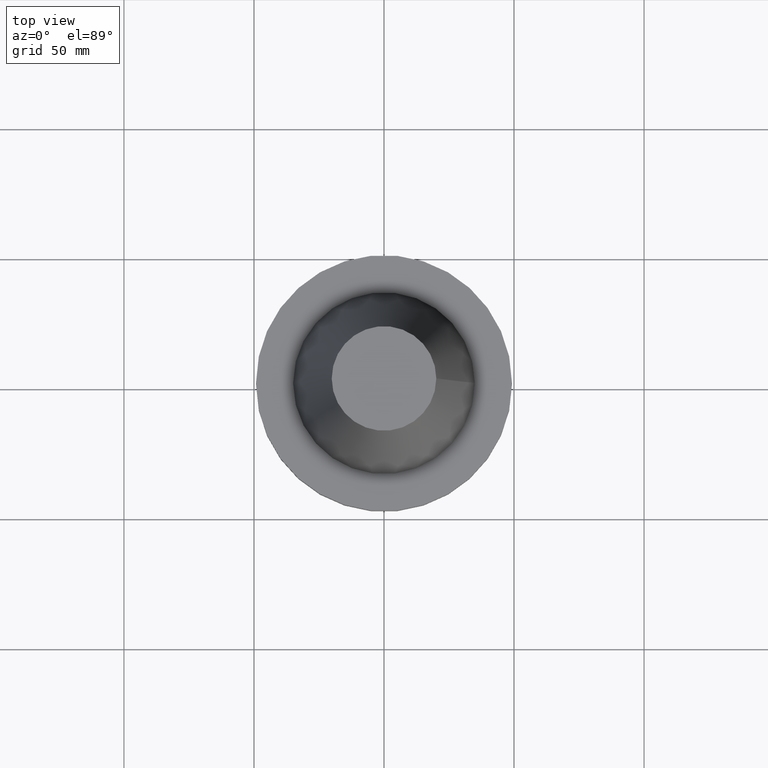
[diagram: clean part render]
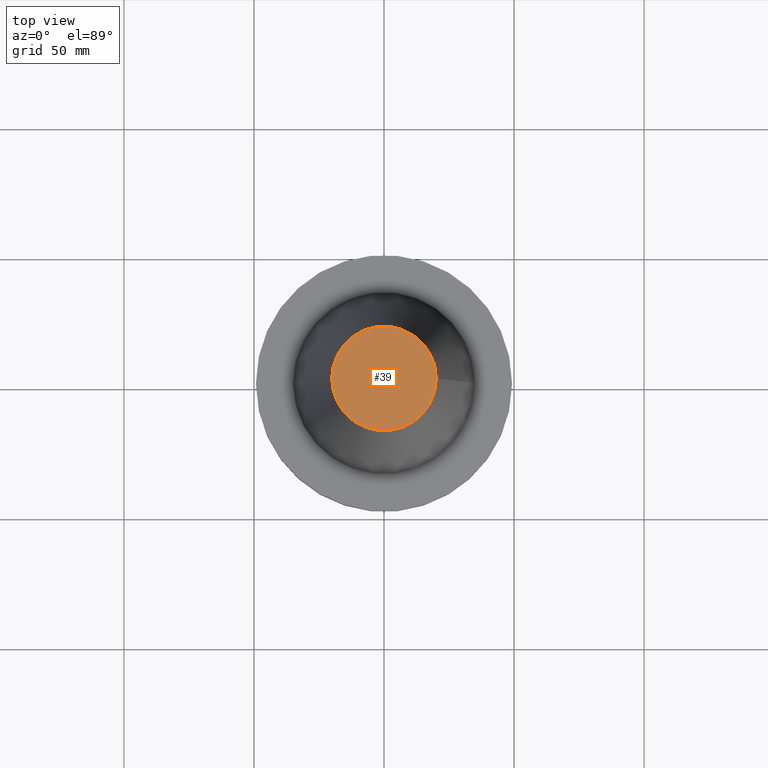
[diagram: same view with one face highlighted and labeled with its STEP entity id]
A machine part, top view. The second image highlights one B-rep face of the part: STEP entity #39.
In plain terms, the highlighted planar face has unit normal (0, 0, -1).
Its self-contained STEP definition (entity closure, byte-faithful):
#5 = FACE_OUTER_BOUND ( 'NONE', #246, .T. ) ;
#16 = CARTESIAN_POINT ( 'NONE',  ( 0.000000000000000000, 0.000000000000000000, 101.5999999999999801 ) ) ;
#39 = ADVANCED_FACE ( 'NONE', ( #5 ), #241, .F. ) ;
#81 = EDGE_CURVE ( 'NONE', #236, #236, #269, .T. ) ;
#82 = CARTESIAN_POINT ( 'NONE',  ( 20.10819343178871321, 0.000000000000000000, 101.5999999999999801 ) ) ;
#94 = DIRECTION ( 'NONE',  ( -1.000000000000000000, 0.000000000000000000, -0.000000000000000000 ) ) ;
#107 = ORIENTED_EDGE ( 'NONE', *, *, #81, .T. ) ;
#121 = CARTESIAN_POINT ( 'NONE',  ( 0.000000000000000000, 20.10819343178871321, 101.5999999999999943 ) ) ;
#124 = DIRECTION ( 'NONE',  ( 0.000000000000000000, 0.000000000000000000, -1.000000000000000000 ) ) ;
#223 = DIRECTION ( 'NONE',  ( -0.000000000000000000, -0.000000000000000000, 1.000000000000000000 ) ) ;
#236 = VERTEX_POINT ( 'NONE', #82 ) ;
#241 = PLANE ( 'NONE',  #248 ) ;
#246 = EDGE_LOOP ( 'NONE', ( #107 ) ) ;
#248 = AXIS2_PLACEMENT_3D ( 'NONE', #121, #124, #94 ) ;
#249 = AXIS2_PLACEMENT_3D ( 'NONE', #16, #223, #343 ) ;
#269 = CIRCLE ( 'NONE', #249, 20.10819343178871321 ) ;
#343 = DIRECTION ( 'NONE',  ( 1.000000000000000000, 0.000000000000000000, 0.000000000000000000 ) ) ;